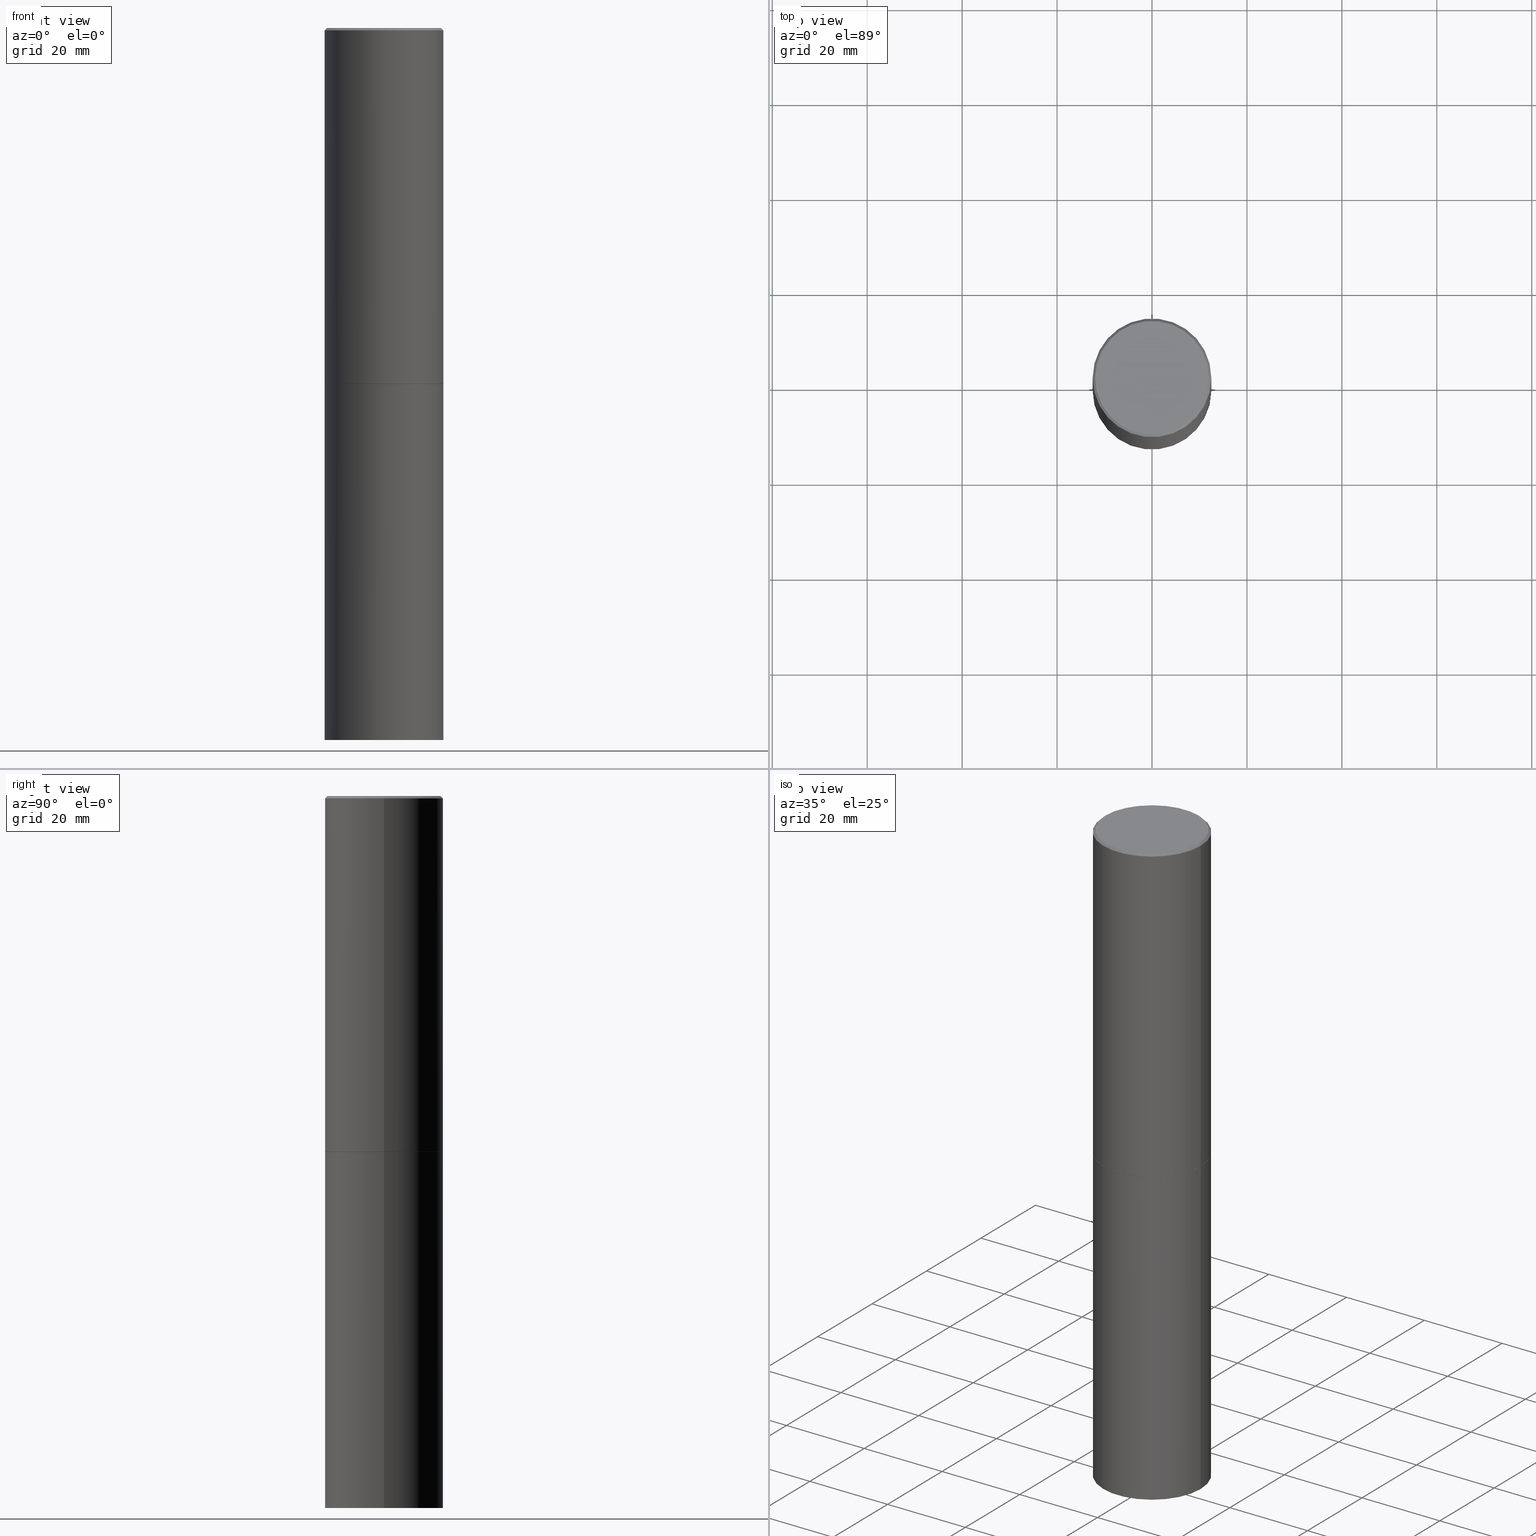
[diagram: canonical four-view strip — front | top / right | iso, engineering-drawing reading convention]
A machine part, canonical four-view strip (front | top / right | iso — engineering-drawing reading convention). The complete STEP part file that produces these views, byte-faithful:
ISO-10303-21;
HEADER;
FILE_DESCRIPTION (( 'STEP AP203' ),
    '1' );
FILE_NAME ('74880.STEP',
    '2024-05-03T15:04:28',
    ( '' ),
    ( '' ),
    'SwSTEP 2.0',
    'SolidWorks 2023',
    '' );
FILE_SCHEMA (( 'CONFIG_CONTROL_DESIGN' ));
ENDSEC;

DATA;
#1 = LINE ( 'NONE', #234, #273 ) ;
#2 = COORDINATED_UNIVERSAL_TIME_OFFSET ( 5, 0, .BEHIND. ) ;
#3 = ADVANCED_FACE ( 'NONE', ( #220 ), #89, .T. ) ;
#4 = CALENDAR_DATE ( 2024, 3, 5 ) ;
#5 = PERSON_AND_ORGANIZATION ( #126, #314 ) ;
#6 = FACE_OUTER_BOUND ( 'NONE', #287, .T. ) ;
#7 = CARTESIAN_POINT ( 'NONE',  ( 7.218290275216666916E-29, -1.030580546786331359E-14, -2.951700000000000212 ) ) ;
#8 = CARTESIAN_POINT ( 'NONE',  ( 7.220735744022851398E-29, -1.030929694920215344E-14, -2.952699999999999214 ) ) ;
#9 = PRODUCT_RELATED_PRODUCT_CATEGORY ( 'detail', '', ( #286 ) ) ;
#10 = CYLINDRICAL_SURFACE ( 'NONE', #14, 0.4921499999999999764 ) ;
#11 =( LENGTH_UNIT ( ) NAMED_UNIT ( * ) SI_UNIT ( $, .METRE. ) );
#12 = FACE_OUTER_BOUND ( 'NONE', #140, .T. ) ;
#13 = FACE_OUTER_BOUND ( 'NONE', #207, .T. ) ;
#14 = AXIS2_PLACEMENT_3D ( 'NONE', #244, #84, #324 ) ;
#15 = CYLINDRICAL_SURFACE ( 'NONE', #165, 0.4921499999999999764 ) ;
#16 = DIRECTION ( 'NONE',  ( 1.000000000000000000, -6.982962677686264344E-15, 0.000000000000000000 ) ) ;
#17 = CARTESIAN_POINT ( 'NONE',  ( 7.220735744022852519E-29, -1.030929694920215502E-14, -2.952700000000000102 ) ) ;
#18 = EDGE_LOOP ( 'NONE', ( #252, #135 ) ) ;
#19 = DIRECTION ( 'NONE',  ( 1.000000000000000000, -6.982962677686265922E-15, 0.000000000000000000 ) ) ;
#20 = VECTOR ( 'NONE', #154, 39.37007874015748143 ) ;
#21 = CONICAL_SURFACE ( 'NONE', #115, 0.4911499999999999755, 0.7853981633978239785 ) ;
#22 = ORIENTED_EDGE ( 'NONE', *, *, #46, .F. ) ;
#23 = APPROVAL_PERSON_ORGANIZATION ( #68, #206, #177 ) ;
#24 = EDGE_CURVE ( 'NONE', #87, #362, #218, .T. ) ;
#25 = EDGE_LOOP ( 'NONE', ( #182, #170, #310, #340 ) ) ;
#26 = ORIENTED_EDGE ( 'NONE', *, *, #254, .T. ) ;
#27 = DESIGN_CONTEXT ( 'detailed design', #110, 'design' ) ;
#28 = CARTESIAN_POINT ( 'NONE',  ( 0.4921499999999996988, -3.446223716380120377E-15, -0.02000000000000009409 ) ) ;
#29 = APPLICATION_PROTOCOL_DEFINITION ( 'international standard', 'config_control_design', 1994, #110 ) ;
#30 = VERTEX_POINT ( 'NONE', #144 ) ;
#31 = AXIS2_PLACEMENT_3D ( 'NONE', #17, #248, #303 ) ;
#32 = CIRCLE ( 'NONE', #79, 0.4921499999999999764 ) ;
#33 = DATE_AND_TIME ( #96, #274 ) ;
#34 = DATE_AND_TIME ( #366, #242 ) ;
#35 = EDGE_CURVE ( 'NONE', #295, #146, #337, .T. ) ;
#36 = APPROVAL_STATUS ( 'not_yet_approved' ) ;
#37 = PERSON_AND_ORGANIZATION ( #126, #314 ) ;
#38 = DIRECTION ( 'NONE',  ( -2.445468806185136597E-29, 3.491481338843145583E-15, 1.000000000000000000 ) ) ;
#39 = DIRECTION ( 'NONE',  ( 1.000000000000000000, -6.982962677686265922E-15, 0.000000000000000000 ) ) ;
#40 = AXIS2_PLACEMENT_3D ( 'NONE', #7, #116, #39 ) ;
#41 = VERTEX_POINT ( 'NONE', #196 ) ;
#42 = EDGE_CURVE ( 'NONE', #295, #87, #52, .T. ) ;
#43 = CARTESIAN_POINT ( 'NONE',  ( 1.444171603492632270E-28, -2.061894304653819197E-14, -5.905499999999999972 ) ) ;
#44 = CARTESIAN_POINT ( 'NONE',  ( -0.4921499999999996988, 3.366835455046430506E-15, -0.02000000000000009409 ) ) ;
#45 = CARTESIAN_POINT ( 'NONE',  ( -0.4911499999999999755, -6.814167848168200725E-15, -2.952699999999999214 ) ) ;
#46 = EDGE_CURVE ( 'NONE', #60, #41, #227, .T. ) ;
#47 = DIRECTION ( 'NONE',  ( 1.000000000000000000, -6.982962677686265922E-15, 0.000000000000000000 ) ) ;
#48 = CARTESIAN_POINT ( 'NONE',  ( 3.436665081823367957E-15, 0.4921499999999896513, -2.952700000000001435 ) ) ;
#49 = CARTESIAN_POINT ( 'NONE',  ( 4.890937612370296805E-31, -6.982962677686323656E-17, -0.02000000000000009409 ) ) ;
#50 = PRODUCT_DEFINITION_FORMATION_WITH_SPECIFIED_SOURCE ( 'ANY', '', #286, .NOT_KNOWN. ) ;
#51 = DIRECTION ( 'NONE',  ( 1.000000000000000000, -6.982962677686265922E-15, 4.876176775795935793E-29 ) ) ;
#52 = LINE ( 'NONE', #107, #195 ) ;
#53 = CARTESIAN_POINT ( 'NONE',  ( 0.4721499999999996255, -3.342703923013973396E-15, 8.537024980224040028E-18 ) ) ;
#54 = CARTESIAN_POINT ( 'NONE',  ( -0.4921499999999999764, -1.196718392382684217E-14, -2.952700000000000102 ) ) ;
#55 = CC_DESIGN_PERSON_AND_ORGANIZATION_ASSIGNMENT ( #179, #285, ( #286 ) ) ;
#56 = AXIS2_PLACEMENT_3D ( 'NONE', #8, #149, #125 ) ;
#57 = AXIS2_PLACEMENT_3D ( 'NONE', #134, #131, #129 ) ;
#58 = ORIENTED_EDGE ( 'NONE', *, *, #346, .T. ) ;
#59 = AXIS2_PLACEMENT_3D ( 'NONE', #275, #320, #201 ) ;
#60 = VERTEX_POINT ( 'NONE', #54 ) ;
#61 = EDGE_CURVE ( 'NONE', #300, #94, #164, .T. ) ;
#62 = SHAPE_DEFINITION_REPRESENTATION ( #187, #272 ) ;
#63 = DIRECTION ( 'NONE',  ( -2.445468806185136597E-29, 3.491481338843145583E-15, 1.000000000000000000 ) ) ;
#64 = ORIENTED_EDGE ( 'NONE', *, *, #335, .T. ) ;
#65 = DIRECTION ( 'NONE',  ( 1.000000000000000000, -6.982962677686265922E-15, 4.876176775795935793E-29 ) ) ;
#66 = DATE_AND_TIME ( #117, #259 ) ;
#67 = ADVANCED_FACE ( 'NONE', ( #222 ), #92, .T. ) ;
#68 = PERSON_AND_ORGANIZATION ( #126, #314 ) ;
#69 = CYLINDRICAL_SURFACE ( 'NONE', #153, 0.4921499999999998098 ) ;
#70 = ORIENTED_EDGE ( 'NONE', *, *, #42, .F. ) ;
#71 = APPROVAL_DATE_TIME ( #33, #206 ) ;
#72 = ORIENTED_EDGE ( 'NONE', *, *, #141, .F. ) ;
#73 = CC_DESIGN_PERSON_AND_ORGANIZATION_ASSIGNMENT ( #147, #260, ( #302 ) ) ;
#74 = EDGE_LOOP ( 'NONE', ( #246, #81, #127, #72 ) ) ;
#75 = FACE_OUTER_BOUND ( 'NONE', #184, .T. ) ;
#76 = DIRECTION ( 'NONE',  ( -2.438088387897960049E-29, 3.491481338843145188E-15, 1.000000000000000000 ) ) ;
#77 = CIRCLE ( 'NONE', #40, 0.4921499999999999764 ) ;
#78 = CARTESIAN_POINT ( 'NONE',  ( -2.087702828670439639E-46, 2.980686340760894400E-32, 8.537024980200822558E-18 ) ) ;
#79 = AXIS2_PLACEMENT_3D ( 'NONE', #350, #236, #98 ) ;
#80 = DIRECTION ( 'NONE',  ( -2.445468806185136597E-29, 3.491481338843145583E-15, 1.000000000000000000 ) ) ;
#81 = ORIENTED_EDGE ( 'NONE', *, *, #24, .T. ) ;
#82 = APPLICATION_PROTOCOL_DEFINITION ( 'international standard', 'config_control_design', 1994, #168 ) ;
#83 = ADVANCED_FACE ( 'NONE', ( #267 ), #69, .T. ) ;
#84 = DIRECTION ( 'NONE',  ( -2.445468806185136597E-29, 3.491481338843145583E-15, 1.000000000000000000 ) ) ;
#85 = DIRECTION ( 'NONE',  ( -2.445468806185136877E-29, 3.491481338843145188E-15, 1.000000000000000000 ) ) ;
#86 = CC_DESIGN_SECURITY_CLASSIFICATION ( #306, ( #50 ) ) ;
#87 = VERTEX_POINT ( 'NONE', #123 ) ;
#88 = EDGE_CURVE ( 'NONE', #358, #60, #178, .T. ) ;
#89 = CONICAL_SURFACE ( 'NONE', #322, 0.4921499999999996988, 0.7853981633974472798 ) ;
#90 = APPROVAL_PERSON_ORGANIZATION ( #230, #353, #281 ) ;
#91 = EDGE_LOOP ( 'NONE', ( #305, #277, #355, #64 ) ) ;
#92 = CYLINDRICAL_SURFACE ( 'NONE', #59, 0.4921499999999998098 ) ;
#93 = ADVANCED_FACE ( 'NONE', ( #279 ), #365, .F. ) ;
#94 = VERTEX_POINT ( 'NONE', #28 ) ;
#95 = CLOSED_SHELL ( 'NONE', ( #262, #334, #186, #250 ) ) ;
#96 = CALENDAR_DATE ( 2024, 3, 5 ) ;
#97 = PERSON_AND_ORGANIZATION ( #126, #314 ) ;
#98 = DIRECTION ( 'NONE',  ( 1.000000000000000000, -6.982962677686265922E-15, 0.000000000000000000 ) ) ;
#99 = CARTESIAN_POINT ( 'NONE',  ( 7.220735744022851398E-29, -1.030929694920215344E-14, -2.952699999999999214 ) ) ;
#100 = DIRECTION ( 'NONE',  ( -2.445468806185136597E-29, 3.491481338843145583E-15, 1.000000000000000000 ) ) ;
#101 = CARTESIAN_POINT ( 'NONE',  ( 0.4921499999999999764, -2.405560812836148932E-14, -5.905499999999999972 ) ) ;
#102 = LINE ( 'NONE', #239, #138 ) ;
#103 = LOCAL_TIME ( 11, 4, 28.00000000000000000, #199 ) ;
#104 = DIRECTION ( 'NONE',  ( -1.000000000000000000, 6.982962677686265922E-15, -4.876176775795935793E-29 ) ) ;
#105 = AXIS2_PLACEMENT_3D ( 'NONE', #150, #76, #265 ) ;
#106 = FACE_OUTER_BOUND ( 'NONE', #111, .T. ) ;
#107 = CARTESIAN_POINT ( 'NONE',  ( -0.4911499999999999755, -6.819466302516420761E-15, -2.952699999999999214 ) ) ;
#108 =( NAMED_UNIT ( * ) SI_UNIT ( $, .STERADIAN. ) SOLID_ANGLE_UNIT ( ) );
#109 = DIRECTION ( 'NONE',  ( -2.445468806185136597E-29, 3.491481338843145583E-15, 1.000000000000000000 ) ) ;
#110 = APPLICATION_CONTEXT ( 'configuration controlled 3d designs of mechanical parts and assemblies' ) ;
#111 = EDGE_LOOP ( 'NONE', ( #238, #318, #166, #172 ) ) ;
#112 = DIRECTION ( 'NONE',  ( 2.438088387897960049E-29, -3.491481338843145188E-15, -1.000000000000000000 ) ) ;
#113 = EDGE_CURVE ( 'NONE', #342, #87, #77, .T. ) ;
#114 = ORIENTED_EDGE ( 'NONE', *, *, #46, .T. ) ;
#115 = AXIS2_PLACEMENT_3D ( 'NONE', #304, #211, #16 ) ;
#116 = DIRECTION ( 'NONE',  ( -2.445468806185136597E-29, 3.491481338843145583E-15, 1.000000000000000000 ) ) ;
#117 = CALENDAR_DATE ( 2024, 3, 5 ) ;
#118 = ORIENTED_EDGE ( 'NONE', *, *, #297, .T. ) ;
#119 = DATE_TIME_ROLE ( 'creation_date' ) ;
#120 = EDGE_CURVE ( 'NONE', #146, #295, #291, .T. ) ;
#121 = PERSON_AND_ORGANIZATION_ROLE ( 'creator' ) ;
#122 = DIRECTION ( 'NONE',  ( -2.445468806185136597E-29, 3.491481338843145583E-15, 1.000000000000000000 ) ) ;
#123 = CARTESIAN_POINT ( 'NONE',  ( -0.4921499999999999764, -1.690881473276754954E-15, -2.951700000000000212 ) ) ;
#124 = FACE_OUTER_BOUND ( 'NONE', #249, .T. ) ;
#125 = DIRECTION ( 'NONE',  ( 1.000000000000000000, -6.982962677686264344E-15, 0.000000000000000000 ) ) ;
#126 = PERSON ( 'UNSPECIFIED', 'UNSPECIFIED', 'UNSPECIFIED', ('UNSPECIFIED'), ('UNSPECIFIED'), ('UNSPECIFIED') ) ;
#127 = ORIENTED_EDGE ( 'NONE', *, *, #254, .F. ) ;
#128 = EDGE_CURVE ( 'NONE', #30, #362, #341, .T. ) ;
#129 = DIRECTION ( 'NONE',  ( -1.000000000000000000, 6.982962677686265922E-15, 0.000000000000000000 ) ) ;
#130 = AXIS2_PLACEMENT_3D ( 'NONE', #48, #326, #325 ) ;
#131 = DIRECTION ( 'NONE',  ( 2.445468806185136597E-29, -3.491481338843145583E-15, -1.000000000000000000 ) ) ;
#132 = CARTESIAN_POINT ( 'NONE',  ( 0.000000000000000000, 0.000000000000000000, 0.000000000000000000 ) ) ;
#133 =( NAMED_UNIT ( * ) PLANE_ANGLE_UNIT ( ) SI_UNIT ( $, .RADIAN. ) );
#134 = CARTESIAN_POINT ( 'NONE',  ( 4.890937612370296805E-31, -6.982962677686323656E-17, -0.02000000000000009409 ) ) ;
#135 = ORIENTED_EDGE ( 'NONE', *, *, #35, .F. ) ;
#136 = ADVANCED_FACE ( 'NONE', ( #6 ), #209, .T. ) ;
#137 = DIRECTION ( 'NONE',  ( -1.000000000000000000, 6.982962677686265922E-15, -4.876176775795935793E-29 ) ) ;
#138 = VECTOR ( 'NONE', #321, 39.37007874015748143 ) ;
#139 = CARTESIAN_POINT ( 'NONE',  ( -0.4921499999999998098, 3.496936074043331714E-15, -2.420853904668950949E-29 ) ) ;
#140 = EDGE_LOOP ( 'NONE', ( #143, #151, #26, #163 ) ) ;
#141 = EDGE_CURVE ( 'NONE', #342, #94, #1, .T. ) ;
#142 = AXIS2_PLACEMENT_3D ( 'NONE', #247, #80, #356 ) ;
#143 = ORIENTED_EDGE ( 'NONE', *, *, #224, .F. ) ;
#144 = CARTESIAN_POINT ( 'NONE',  ( -0.4721499999999996255, 3.331920641657999252E-15, 8.537024980177643606E-18 ) ) ;
#145 = UNCERTAINTY_MEASURE_WITH_UNIT (LENGTH_MEASURE( 1.000000000000000082E-05 ), #160, 'distance_accuracy_value', 'NONE');
#146 = VERTEX_POINT ( 'NONE', #189 ) ;
#147 = PERSON_AND_ORGANIZATION ( #126, #314 ) ;
#148 = CLOSED_SHELL ( 'NONE', ( #308, #83, #311, #3, #67, #136, #93, #361 ) ) ;
#149 = DIRECTION ( 'NONE',  ( -2.445468806185136597E-29, 3.491481338843145583E-15, 1.000000000000000000 ) ) ;
#150 = CARTESIAN_POINT ( 'NONE',  ( 7.220735744022851398E-29, -1.030929694920215344E-14, -2.952699999999999214 ) ) ;
#151 = ORIENTED_EDGE ( 'NONE', *, *, #61, .T. ) ;
#152 = DATE_AND_TIME ( #228, #103 ) ;
#153 = AXIS2_PLACEMENT_3D ( 'NONE', #258, #63, #65 ) ;
#154 = DIRECTION ( 'NONE',  ( -0.7071067811865467956, 2.468850131082249172E-15, -0.7071067811865482389 ) ) ;
#155 = DIRECTION ( 'NONE',  ( 1.000000000000000000, -6.982962677686265922E-15, 0.000000000000000000 ) ) ;
#156 = PERSON_AND_ORGANIZATION_ROLE ( 'classification_officer' ) ;
#157 = APPROVAL_PERSON_ORGANIZATION ( #97, #344, #312 ) ;
#158 = FACE_OUTER_BOUND ( 'NONE', #223, .T. ) ;
#159 = CARTESIAN_POINT ( 'NONE',  ( 4.890937612370296805E-31, -6.982962677686323656E-17, -0.02000000000000009409 ) ) ;
#160 =( CONVERSION_BASED_UNIT ( 'INCH', #331 ) LENGTH_UNIT ( ) NAMED_UNIT ( #278 ) );
#161 = DIRECTION ( 'NONE',  ( 0.7071067811868130271, -2.468850131085038979E-15, 0.7071067811862817853 ) ) ;
#162 = DIRECTION ( 'NONE',  ( 0.000000000000000000, 0.000000000000000000, 1.000000000000000000 ) ) ;
#163 = ORIENTED_EDGE ( 'NONE', *, *, #128, .F. ) ;
#164 = LINE ( 'NONE', #194, #363 ) ;
#165 = AXIS2_PLACEMENT_3D ( 'NONE', #132, #109, #51 ) ;
#166 = ORIENTED_EDGE ( 'NONE', *, *, #316, .F. ) ;
#167 = DIRECTION ( 'NONE',  ( 2.445468806185136597E-29, -3.491481338843145583E-15, -1.000000000000000000 ) ) ;
#168 = APPLICATION_CONTEXT ( 'configuration controlled 3d designs of mechanical parts and assemblies' ) ;
#169 = CONICAL_SURFACE ( 'NONE', #57, 0.4921499999999996988, 0.7853981633974472798 ) ;
#170 = ORIENTED_EDGE ( 'NONE', *, *, #42, .T. ) ;
#171 = CC_DESIGN_PERSON_AND_ORGANIZATION_ASSIGNMENT ( #5, #156, ( #306 ) ) ;
#172 = ORIENTED_EDGE ( 'NONE', *, *, #198, .F. ) ;
#173 = DIRECTION ( 'NONE',  ( -2.445468806185136877E-29, 3.491481338843145188E-15, 1.000000000000000000 ) ) ;
#174 = COORDINATED_UNIVERSAL_TIME_OFFSET ( 5, 0, .BEHIND. ) ;
#175 = AXIS2_PLACEMENT_3D ( 'NONE', #243, #351, #47 ) ;
#176 = CIRCLE ( 'NONE', #268, 0.4921499999999999764 ) ;
#177 = APPROVAL_ROLE ( '' ) ;
#178 = LINE ( 'NONE', #288, #241 ) ;
#179 = PERSON_AND_ORGANIZATION ( #126, #314 ) ;
#180 = MECHANICAL_CONTEXT ( 'NONE', #168, 'mechanical' ) ;
#181 = MANIFOLD_SOLID_BREP ( 'Body-Move/Copy2[1]', #95 ) ;
#182 = ORIENTED_EDGE ( 'NONE', *, *, #120, .T. ) ;
#183 = CARTESIAN_POINT ( 'NONE',  ( 3.297005828269567997E-15, 0.4721499999999996255, -1.644234401644689488E-15 ) ) ;
#184 = EDGE_LOOP ( 'NONE', ( #364, #226 ) ) ;
#185 = PLANE ( 'NONE',  #292 ) ;
#186 = ADVANCED_FACE ( 'NONE', ( #124 ), #347, .F. ) ;
#187 = PRODUCT_DEFINITION_SHAPE ( 'NONE', 'NONE',  #302 ) ;
#188 = DIRECTION ( 'NONE',  ( -2.445468806185136597E-29, 3.491481338843145583E-15, 1.000000000000000000 ) ) ;
#189 = CARTESIAN_POINT ( 'NONE',  ( 0.4911499999999999755, -1.373897906834776162E-14, -2.952699999999999214 ) ) ;
#190 = DIRECTION ( 'NONE',  ( -0.7071067811868130271, 7.493145998871311837E-15, 0.7071067811862817853 ) ) ;
#191 = AXIS2_PLACEMENT_3D ( 'NONE', #78, #352, #345 ) ;
#192 = DIRECTION ( 'NONE',  ( 1.000000000000000000, -6.982962677686264344E-15, 0.000000000000000000 ) ) ;
#193 = ORIENTED_EDGE ( 'NONE', *, *, #335, .F. ) ;
#194 = CARTESIAN_POINT ( 'NONE',  ( 0.4921499999999996988, -3.446223716380120377E-15, -0.02000000000000009409 ) ) ;
#195 = VECTOR ( 'NONE', #190, 39.37007874015748854 ) ;
#196 = CARTESIAN_POINT ( 'NONE',  ( 0.4921499999999999764, -1.374596203102545079E-14, -2.952700000000000102 ) ) ;
#197 = CC_DESIGN_APPROVAL ( #353, ( #50 ) ) ;
#198 = EDGE_CURVE ( 'NONE', #336, #41, #102, .T. ) ;
#199 = COORDINATED_UNIVERSAL_TIME_OFFSET ( 5, 0, .BEHIND. ) ;
#200 = APPROVAL_STATUS ( 'not_yet_approved' ) ;
#201 = DIRECTION ( 'NONE',  ( 1.000000000000000000, -6.982962677686265922E-15, 4.876176775795935793E-29 ) ) ;
#202 = CC_DESIGN_DATE_AND_TIME_ASSIGNMENT ( #152, #339, ( #306 ) ) ;
#203 = CC_DESIGN_APPROVAL ( #344, ( #302 ) ) ;
#204 = PERSON_AND_ORGANIZATION_ROLE ( 'design_supplier' ) ;
#205 = CARTESIAN_POINT ( 'NONE',  ( -0.4921499999999999764, -1.196718392382684217E-14, -5.905499999999999972 ) ) ;
#206 = APPROVAL ( #315, 'UNSPECIFIED' ) ;
#207 = EDGE_LOOP ( 'NONE', ( #231, #257, #214, #22 ) ) ;
#208 = DIRECTION ( 'NONE',  ( 2.438088387897960049E-29, -3.491481338843145188E-15, -1.000000000000000000 ) ) ;
#209 = CONICAL_SURFACE ( 'NONE', #56, 0.4911499999999999755, 0.7853981633978239785 ) ;
#210 = CIRCLE ( 'NONE', #142, 0.4721499999999996255 ) ;
#211 = DIRECTION ( 'NONE',  ( -2.445468806185136597E-29, 3.491481338843145583E-15, 1.000000000000000000 ) ) ;
#212 = CARTESIAN_POINT ( 'NONE',  ( 0.4921499999999999764, -1.374247054968660936E-14, -2.951700000000000212 ) ) ;
#213 = CARTESIAN_POINT ( 'NONE',  ( 1.444171603492632270E-28, -2.061894304653819197E-14, -5.905499999999999972 ) ) ;
#214 = ORIENTED_EDGE ( 'NONE', *, *, #198, .T. ) ;
#215 = DIRECTION ( 'NONE',  ( 0.7071067811865467956, -7.319954787623254468E-15, -0.7071067811865482389 ) ) ;
#216 = EDGE_LOOP ( 'NONE', ( #328, #58, #255, #193 ) ) ;
#217 = CIRCLE ( 'NONE', #175, 0.4921499999999999764 ) ;
#218 = LINE ( 'NONE', #139, #293 ) ;
#219 = CARTESIAN_POINT ( 'NONE',  ( 3.436665081823440533E-15, 0.4921499999999793262, -5.905500000000001748 ) ) ;
#220 = FACE_OUTER_BOUND ( 'NONE', #91, .T. ) ;
#221 = CIRCLE ( 'NONE', #338, 0.4921499999999996988 ) ;
#222 = FACE_OUTER_BOUND ( 'NONE', #216, .T. ) ;
#223 = EDGE_LOOP ( 'NONE', ( #276, #256 ) ) ;
#224 = EDGE_CURVE ( 'NONE', #300, #30, #309, .T. ) ;
#225 = ORIENTED_EDGE ( 'NONE', *, *, #316, .T. ) ;
#226 = ORIENTED_EDGE ( 'NONE', *, *, #224, .T. ) ;
#227 = CIRCLE ( 'NONE', #31, 0.4921499999999999764 ) ;
#228 = CALENDAR_DATE ( 2024, 3, 5 ) ;
#229 = AXIS2_PLACEMENT_3D ( 'NONE', #219, #112, #137 ) ;
#230 = PERSON_AND_ORGANIZATION ( #126, #314 ) ;
#231 = ORIENTED_EDGE ( 'NONE', *, *, #88, .F. ) ;
#232 = EDGE_CURVE ( 'NONE', #336, #358, #176, .T. ) ;
#233 = DATE_AND_TIME ( #4, #298 ) ;
#234 = CARTESIAN_POINT ( 'NONE',  ( 0.4921499999999998098, -3.436665081823294593E-15, 2.399810400207968762E-29 ) ) ;
#235 = CC_DESIGN_APPROVAL ( #206, ( #306 ) ) ;
#236 = DIRECTION ( 'NONE',  ( -2.445468806185136597E-29, 3.491481338843145583E-15, 1.000000000000000000 ) ) ;
#237 = CC_DESIGN_PERSON_AND_ORGANIZATION_ASSIGNMENT ( #313, #121, ( #50 ) ) ;
#238 = ORIENTED_EDGE ( 'NONE', *, *, #232, .T. ) ;
#239 = CARTESIAN_POINT ( 'NONE',  ( 0.4921499999999999764, -3.436665081823295777E-15, 2.399810400207969603E-29 ) ) ;
#240 = DIRECTION ( 'NONE',  ( 1.000000000000000000, -6.982962677686265922E-15, 0.000000000000000000 ) ) ;
#241 = VECTOR ( 'NONE', #173, 39.37007874015748143 ) ;
#242 = LOCAL_TIME ( 11, 4, 28.00000000000000000, #174 ) ;
#243 = CARTESIAN_POINT ( 'NONE',  ( 7.220735744022852519E-29, -1.030929694920215502E-14, -2.952700000000000102 ) ) ;
#244 = CARTESIAN_POINT ( 'NONE',  ( 0.000000000000000000, 0.000000000000000000, 0.000000000000000000 ) ) ;
#245 = DIRECTION ( 'NONE',  ( -1.000000000000000000, 6.982962677686265922E-15, 0.000000000000000000 ) ) ;
#246 = ORIENTED_EDGE ( 'NONE', *, *, #113, .T. ) ;
#247 = CARTESIAN_POINT ( 'NONE',  ( -2.087702828670439639E-46, 2.980686340760894400E-32, 8.537024980200822558E-18 ) ) ;
#248 = DIRECTION ( 'NONE',  ( -2.445468806185136597E-29, 3.491481338843145583E-15, 1.000000000000000000 ) ) ;
#249 = EDGE_LOOP ( 'NONE', ( #225, #114 ) ) ;
#250 = ADVANCED_FACE ( 'NONE', ( #13 ), #10, .T. ) ;
#251 = CARTESIAN_POINT ( 'NONE',  ( 7.220735744022851398E-29, -1.030929694920215344E-14, -2.952699999999999214 ) ) ;
#252 = ORIENTED_EDGE ( 'NONE', *, *, #120, .F. ) ;
#253 = AXIS2_PLACEMENT_3D ( 'NONE', #213, #357, #19 ) ;
#254 = EDGE_CURVE ( 'NONE', #94, #362, #221, .T. ) ;
#255 = ORIENTED_EDGE ( 'NONE', *, *, #141, .T. ) ;
#256 = ORIENTED_EDGE ( 'NONE', *, *, #271, .F. ) ;
#257 = ORIENTED_EDGE ( 'NONE', *, *, #271, .T. ) ;
#258 = CARTESIAN_POINT ( 'NONE',  ( 0.000000000000000000, 0.000000000000000000, 0.000000000000000000 ) ) ;
#259 = LOCAL_TIME ( 11, 4, 28.00000000000000000, #2 ) ;
#260 = PERSON_AND_ORGANIZATION_ROLE ( 'creator' ) ;
#261 = AXIS2_PLACEMENT_3D ( 'NONE', #251, #330, #192 ) ;
#262 = ADVANCED_FACE ( 'NONE', ( #106 ), #15, .T. ) ;
#263 = COORDINATED_UNIVERSAL_TIME_OFFSET ( 5, 0, .BEHIND. ) ;
#264 = SECURITY_CLASSIFICATION_LEVEL ( 'unclassified' ) ;
#265 = DIRECTION ( 'NONE',  ( 1.000000000000000000, -6.982962677686265922E-15, 4.876176775795935793E-29 ) ) ;
#266 = EDGE_CURVE ( 'NONE', #30, #300, #210, .T. ) ;
#267 = FACE_OUTER_BOUND ( 'NONE', #74, .T. ) ;
#268 = AXIS2_PLACEMENT_3D ( 'NONE', #43, #100, #155 ) ;
#269 = CC_DESIGN_PERSON_AND_ORGANIZATION_ASSIGNMENT ( #37, #204, ( #50 ) ) ;
#270 = FACE_OUTER_BOUND ( 'NONE', #25, .T. ) ;
#271 = EDGE_CURVE ( 'NONE', #358, #336, #360, .T. ) ;
#272 = ADVANCED_BREP_SHAPE_REPRESENTATION ( '74880', ( #181, #294, #284 ), #323 ) ;
#273 = VECTOR ( 'NONE', #299, 39.37007874015748143 ) ;
#274 = LOCAL_TIME ( 11, 4, 28.00000000000000000, #282 ) ;
#275 = CARTESIAN_POINT ( 'NONE',  ( 0.000000000000000000, 0.000000000000000000, 0.000000000000000000 ) ) ;
#276 = ORIENTED_EDGE ( 'NONE', *, *, #232, .F. ) ;
#277 = ORIENTED_EDGE ( 'NONE', *, *, #266, .F. ) ;
#278 = DIMENSIONAL_EXPONENTS ( 1.000000000000000000, 0.000000000000000000, 0.000000000000000000, 0.000000000000000000, 0.000000000000000000, 0.000000000000000000, 0.000000000000000000 ) ;
#279 = FACE_OUTER_BOUND ( 'NONE', #18, .T. ) ;
#280 = APPROVAL_DATE_TIME ( #66, #344 ) ;
#281 = APPROVAL_ROLE ( '' ) ;
#282 = COORDINATED_UNIVERSAL_TIME_OFFSET ( 5, 0, .BEHIND. ) ;
#283 = CARTESIAN_POINT ( 'NONE',  ( -0.4921499999999996988, 3.366835455046430506E-15, -0.02000000000000009409 ) ) ;
#284 = AXIS2_PLACEMENT_3D ( 'NONE', #354, #162, #317 ) ;
#285 = PERSON_AND_ORGANIZATION_ROLE ( 'design_owner' ) ;
#286 = PRODUCT ( '74880', '74880', '', ( #180 ) ) ;
#287 = EDGE_LOOP ( 'NONE', ( #70, #307, #118, #319 ) ) ;
#288 = CARTESIAN_POINT ( 'NONE',  ( -0.4921499999999999764, 3.496936074043332897E-15, -2.420853904668951509E-29 ) ) ;
#289 = CARTESIAN_POINT ( 'NONE',  ( 4.890937612370296805E-31, -6.982962677686323656E-17, -0.02000000000000009409 ) ) ;
#290 = DIRECTION ( 'NONE',  ( 1.000000000000000000, -6.982962677686264344E-15, 0.000000000000000000 ) ) ;
#291 = CIRCLE ( 'NONE', #332, 0.4911499999999999755 ) ;
#292 = AXIS2_PLACEMENT_3D ( 'NONE', #183, #208, #104 ) ;
#293 = VECTOR ( 'NONE', #85, 39.37007874015748143 ) ;
#294 = MANIFOLD_SOLID_BREP ( 'Body-Move/Copy2[2]', #148 ) ;
#295 = VERTEX_POINT ( 'NONE', #45 ) ;
#296 = DIRECTION ( 'NONE',  ( 1.000000000000000000, -6.982962677686265922E-15, 0.000000000000000000 ) ) ;
#297 = EDGE_CURVE ( 'NONE', #146, #342, #301, .T. ) ;
#298 = LOCAL_TIME ( 11, 4, 28.00000000000000000, #263 ) ;
#299 = DIRECTION ( 'NONE',  ( -2.445468806185136877E-29, 3.491481338843145188E-15, 1.000000000000000000 ) ) ;
#300 = VERTEX_POINT ( 'NONE', #53 ) ;
#301 = LINE ( 'NONE', #349, #333 ) ;
#302 = PRODUCT_DEFINITION ( 'UNKNOWN', '', #50, #27 ) ;
#303 = DIRECTION ( 'NONE',  ( 1.000000000000000000, -6.982962677686265922E-15, 0.000000000000000000 ) ) ;
#304 = CARTESIAN_POINT ( 'NONE',  ( 7.220735744022851398E-29, -1.030929694920215344E-14, -2.952699999999999214 ) ) ;
#305 = ORIENTED_EDGE ( 'NONE', *, *, #61, .F. ) ;
#306 = SECURITY_CLASSIFICATION ( '', '', #264 ) ;
#307 = ORIENTED_EDGE ( 'NONE', *, *, #35, .T. ) ;
#308 = ADVANCED_FACE ( 'NONE', ( #270 ), #21, .T. ) ;
#309 = CIRCLE ( 'NONE', #191, 0.4721499999999996255 ) ;
#310 = ORIENTED_EDGE ( 'NONE', *, *, #113, .F. ) ;
#311 = ADVANCED_FACE ( 'NONE', ( #12 ), #169, .T. ) ;
#312 = APPROVAL_ROLE ( '' ) ;
#313 = PERSON_AND_ORGANIZATION ( #126, #314 ) ;
#314 = ORGANIZATION ( 'UNSPECIFIED', 'UNSPECIFIED', '' ) ;
#315 = APPROVAL_STATUS ( 'not_yet_approved' ) ;
#316 = EDGE_CURVE ( 'NONE', #41, #60, #217, .T. ) ;
#317 = DIRECTION ( 'NONE',  ( 1.000000000000000000, 0.000000000000000000, 0.000000000000000000 ) ) ;
#318 = ORIENTED_EDGE ( 'NONE', *, *, #88, .T. ) ;
#319 = ORIENTED_EDGE ( 'NONE', *, *, #346, .F. ) ;
#320 = DIRECTION ( 'NONE',  ( -2.445468806185136597E-29, 3.491481338843145583E-15, 1.000000000000000000 ) ) ;
#321 = DIRECTION ( 'NONE',  ( -2.445468806185136877E-29, 3.491481338843145188E-15, 1.000000000000000000 ) ) ;
#322 = AXIS2_PLACEMENT_3D ( 'NONE', #49, #167, #245 ) ;
#323 =( GEOMETRIC_REPRESENTATION_CONTEXT ( 3 ) GLOBAL_UNCERTAINTY_ASSIGNED_CONTEXT ( ( #145 ) ) GLOBAL_UNIT_ASSIGNED_CONTEXT ( ( #160, #133, #108 ) ) REPRESENTATION_CONTEXT ( 'NONE', 'WORKASPACE' ) );
#324 = DIRECTION ( 'NONE',  ( 1.000000000000000000, -6.982962677686265922E-15, 4.876176775795935793E-29 ) ) ;
#325 = DIRECTION ( 'NONE',  ( -1.000000000000000000, 6.982962677686265922E-15, -4.876176775795935793E-29 ) ) ;
#326 = DIRECTION ( 'NONE',  ( 2.438088387897960049E-29, -3.491481338843145188E-15, -1.000000000000000000 ) ) ;
#327 = AXIS2_PLACEMENT_3D ( 'NONE', #289, #38, #240 ) ;
#328 = ORIENTED_EDGE ( 'NONE', *, *, #24, .F. ) ;
#329 = PLANE ( 'NONE',  #229 ) ;
#330 = DIRECTION ( 'NONE',  ( -2.445468806185136597E-29, 3.491481338843145583E-15, 1.000000000000000000 ) ) ;
#331 = LENGTH_MEASURE_WITH_UNIT ( LENGTH_MEASURE( 0.02539999999999999897 ), #11 );
#332 = AXIS2_PLACEMENT_3D ( 'NONE', #99, #122, #290 ) ;
#333 = VECTOR ( 'NONE', #161, 39.37007874015748854 ) ;
#334 = ADVANCED_FACE ( 'NONE', ( #158 ), #329, .T. ) ;
#335 = EDGE_CURVE ( 'NONE', #362, #94, #348, .T. ) ;
#336 = VERTEX_POINT ( 'NONE', #101 ) ;
#337 = CIRCLE ( 'NONE', #261, 0.4911499999999999755 ) ;
#338 = AXIS2_PLACEMENT_3D ( 'NONE', #159, #188, #296 ) ;
#339 = DATE_TIME_ROLE ( 'classification_date' ) ;
#340 = ORIENTED_EDGE ( 'NONE', *, *, #297, .F. ) ;
#341 = LINE ( 'NONE', #283, #20 ) ;
#342 = VERTEX_POINT ( 'NONE', #212 ) ;
#343 = APPROVAL_DATE_TIME ( #233, #353 ) ;
#344 = APPROVAL ( #200, 'UNSPECIFIED' ) ;
#345 = DIRECTION ( 'NONE',  ( 1.000000000000000000, -6.982962677686265922E-15, 4.876006802227162976E-29 ) ) ;
#346 = EDGE_CURVE ( 'NONE', #87, #342, #32, .T. ) ;
#347 = PLANE ( 'NONE',  #130 ) ;
#348 = CIRCLE ( 'NONE', #327, 0.4921499999999996988 ) ;
#349 = CARTESIAN_POINT ( 'NONE',  ( 0.4911499999999999755, -1.373897906834776162E-14, -2.952699999999999214 ) ) ;
#350 = CARTESIAN_POINT ( 'NONE',  ( 7.218290275216666916E-29, -1.030580546786331359E-14, -2.951700000000000212 ) ) ;
#351 = DIRECTION ( 'NONE',  ( -2.445468806185136597E-29, 3.491481338843145583E-15, 1.000000000000000000 ) ) ;
#352 = DIRECTION ( 'NONE',  ( -2.445468806185136597E-29, 3.491481338843145583E-15, 1.000000000000000000 ) ) ;
#353 = APPROVAL ( #36, 'UNSPECIFIED' ) ;
#354 = CARTESIAN_POINT ( 'NONE',  ( 0.000000000000000000, 0.000000000000000000, 0.000000000000000000 ) ) ;
#355 = ORIENTED_EDGE ( 'NONE', *, *, #128, .T. ) ;
#356 = DIRECTION ( 'NONE',  ( 1.000000000000000000, -6.982962677686265922E-15, 4.876006802227162976E-29 ) ) ;
#357 = DIRECTION ( 'NONE',  ( -2.445468806185136597E-29, 3.491481338843145583E-15, 1.000000000000000000 ) ) ;
#358 = VERTEX_POINT ( 'NONE', #205 ) ;
#359 = CC_DESIGN_DATE_AND_TIME_ASSIGNMENT ( #34, #119, ( #302 ) ) ;
#360 = CIRCLE ( 'NONE', #253, 0.4921499999999999764 ) ;
#361 = ADVANCED_FACE ( 'NONE', ( #75 ), #185, .F. ) ;
#362 = VERTEX_POINT ( 'NONE', #44 ) ;
#363 = VECTOR ( 'NONE', #215, 39.37007874015748143 ) ;
#364 = ORIENTED_EDGE ( 'NONE', *, *, #266, .T. ) ;
#365 = PLANE ( 'NONE',  #105 ) ;
#366 = CALENDAR_DATE ( 2024, 3, 5 ) ;
ENDSEC;
END-ISO-10303-21;
